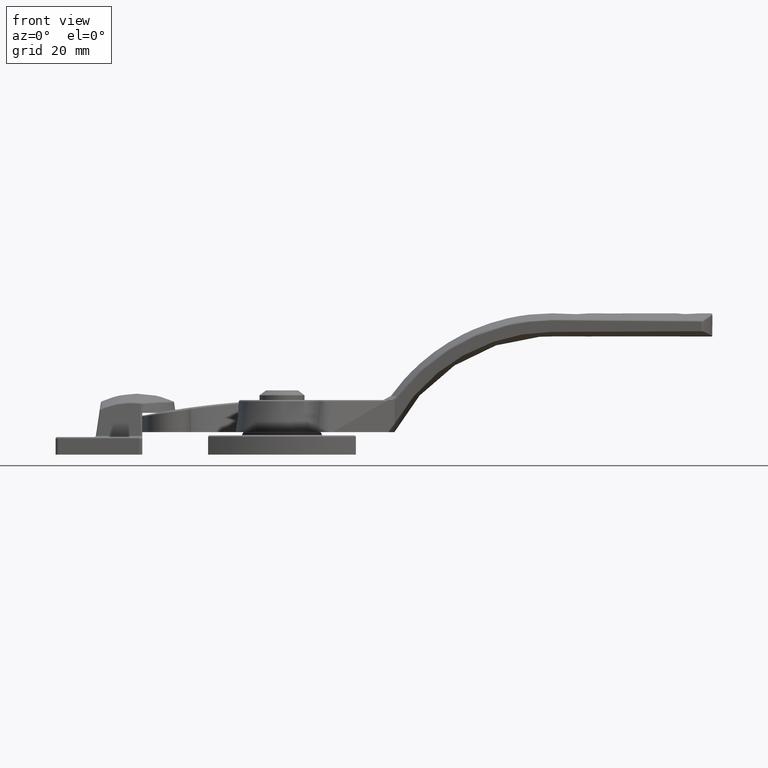
[diagram: clean part render]
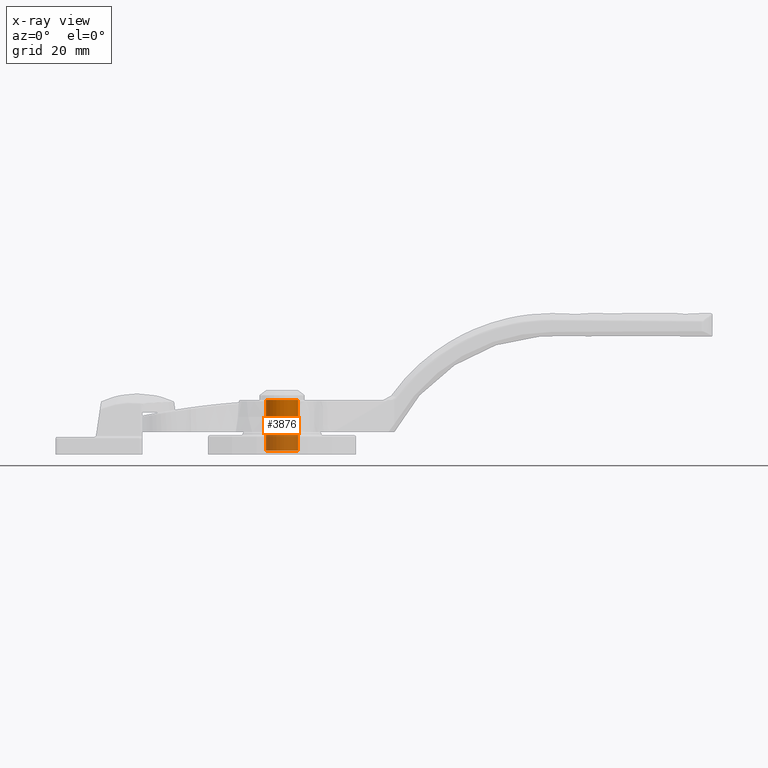
[diagram: x-ray — body ghosted, one internal face saturated and labeled with its STEP entity id]
A machine part, front view, then the same camera in x-ray: the body is ghosted and one INTERNAL B-rep face — a face not visible from any outside direction — is saturated and labeled: STEP entity #3876.
In plain terms, the highlighted cylindrical surface (bore or boss wall) has radius 5 mm, axis along (0, -0, 1).
Its self-contained STEP definition (entity closure, byte-faithful):
#239=FACE_BOUND('',#1254,.T.);
#781=CYLINDRICAL_SURFACE('',#4306,5.);
#966=FACE_OUTER_BOUND('',#1253,.T.);
#1253=EDGE_LOOP('',(#3285));
#1254=EDGE_LOOP('',(#3286));
#1557=CIRCLE('',#4305,5.);
#1558=CIRCLE('',#4307,5.);
#1869=VERTEX_POINT('',#7463);
#1870=VERTEX_POINT('',#7466);
#2359=EDGE_CURVE('',#1869,#1869,#1557,.T.);
#2360=EDGE_CURVE('',#1870,#1870,#1558,.T.);
#3285=ORIENTED_EDGE('',*,*,#2359,.T.);
#3286=ORIENTED_EDGE('',*,*,#2360,.F.);
#3876=ADVANCED_FACE('',(#966,#239),#781,.T.);
#4305=AXIS2_PLACEMENT_3D('',#7464,#5245,#5246);
#4306=AXIS2_PLACEMENT_3D('',#7465,#5247,#5248);
#4307=AXIS2_PLACEMENT_3D('',#7467,#5249,#5250);
#5245=DIRECTION('center_axis',(-1.31387340192326E-16,1.,0.));
#5246=DIRECTION('ref_axis',(-1.,-1.31387340192326E-16,0.));
#5247=DIRECTION('center_axis',(-1.31387340192326E-16,1.,0.));
#5248=DIRECTION('ref_axis',(-1.,-1.31387340192326E-16,0.));
#5249=DIRECTION('center_axis',(-1.31387340192326E-16,1.,0.));
#5250=DIRECTION('ref_axis',(-1.,-1.31387340192326E-16,0.));
#7463=CARTESIAN_POINT('',(5.,-18.7,-6.12323399573677E-16));
#7464=CARTESIAN_POINT('Origin',(2.4569432615965E-15,-18.7,0.));
#7465=CARTESIAN_POINT('Origin',(1.42555264108674E-15,-10.85,0.));
#7466=CARTESIAN_POINT('',(5.,-3.,-6.12323399573677E-16));
#7467=CARTESIAN_POINT('Origin',(3.94162020576979E-16,-3.,0.));